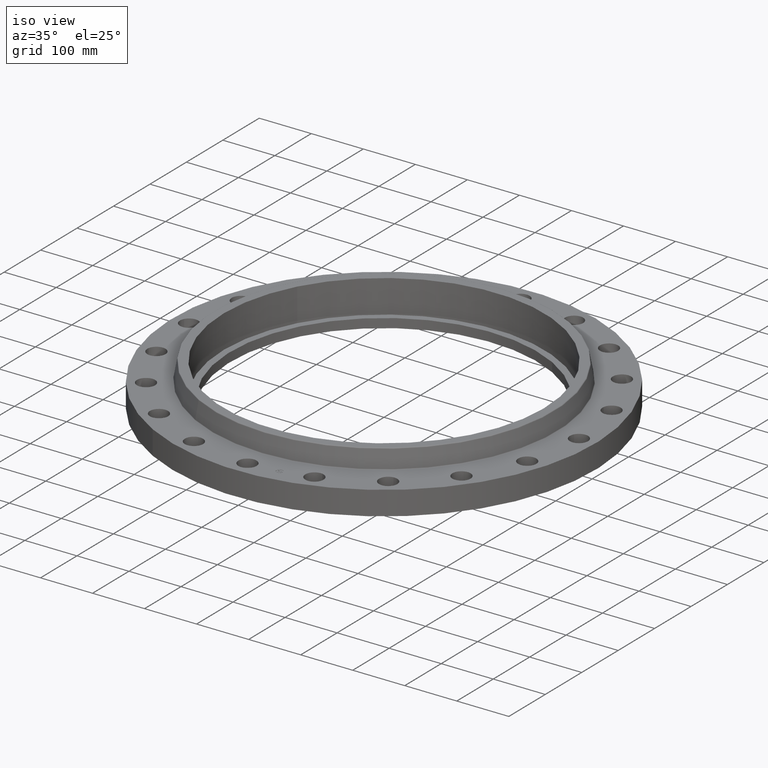
[diagram: clean part render]
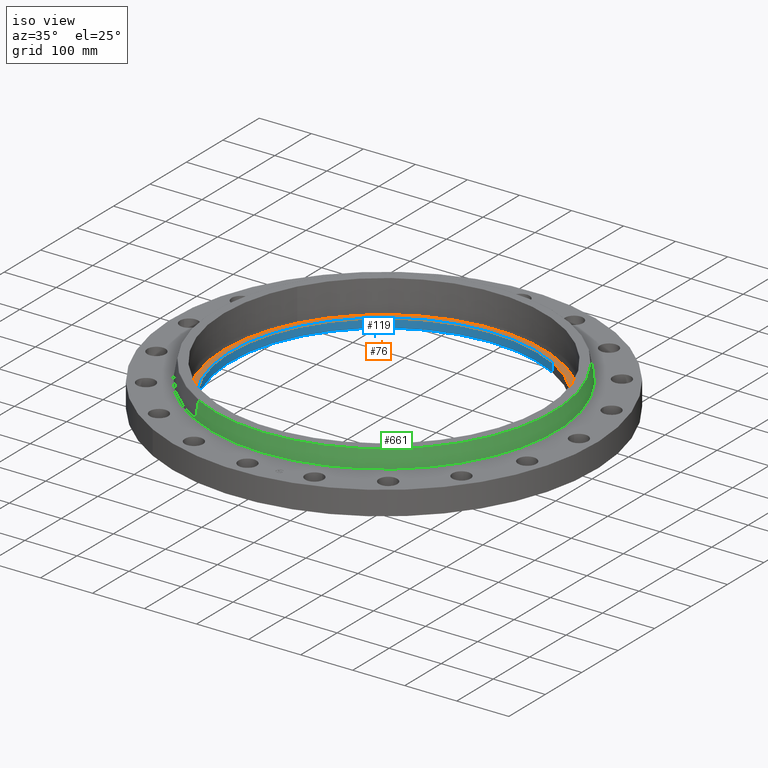
[diagram: same view with three faces highlighted in distinct colors, each labeled with its STEP entity id]
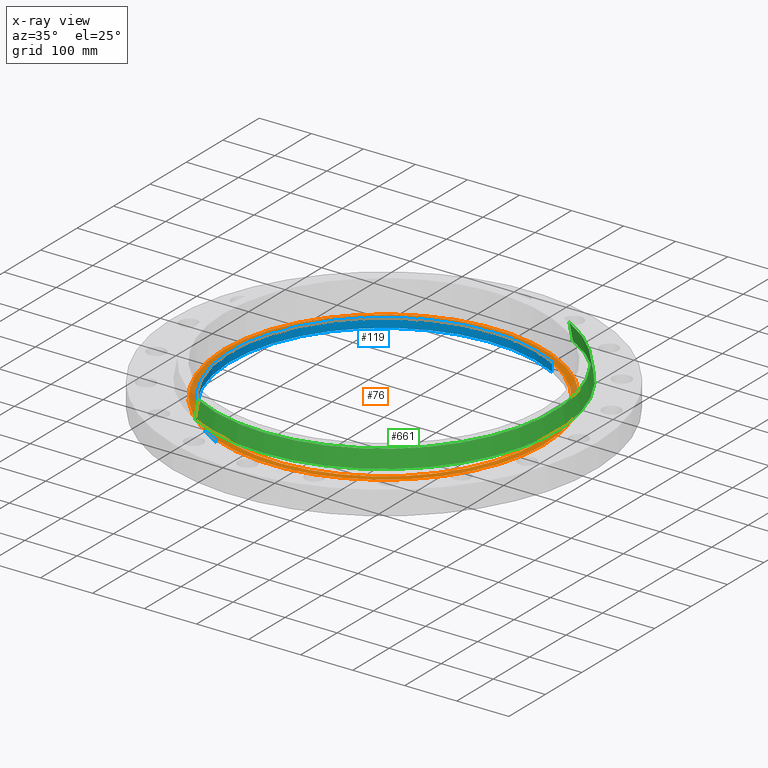
[diagram: x-ray of the same camera — body ghosted, the three highlighted faces saturated]
A machine part, iso view with three faces highlighted in distinct colors.
The next image is the same camera in x-ray (body ghosted, the three faces saturated) — at least one of them is partly hidden behind the body in this view.
Their STEP definitions:

[orange] entity #76 — the highlighted planar face has unit normal (0, 0, -1).
#38=AXIS2_PLACEMENT_3D('Plane Axis2P3D',#35,#36,#37) ;
#42=AXIS2_PLACEMENT_3D('Circle Axis2P3D',#40,#41,$) ;
#51=AXIS2_PLACEMENT_3D('Circle Axis2P3D',#49,#50,$) ;
#60=AXIS2_PLACEMENT_3D('Circle Axis2P3D',#58,#59,$) ;
#69=AXIS2_PLACEMENT_3D('Circle Axis2P3D',#67,#68,$) ;
#35=CARTESIAN_POINT('Axis2P3D Location',(0.,-6.99353086378E-017,0.690000000003)) ;
#40=CARTESIAN_POINT('Axis2P3D Location',(0.,-6.99353086378E-017,0.690000000003)) ;
#44=CARTESIAN_POINT('Vertex',(-10.640688563,5.8130346556,0.690000000003)) ;
#46=CARTESIAN_POINT('Vertex',(10.640688563,-5.8130346556,0.690000000003)) ;
#49=CARTESIAN_POINT('Axis2P3D Location',(0.,-6.99353086378E-017,0.690000000003)) ;
#58=CARTESIAN_POINT('Axis2P3D Location',(0.,-6.99353086378E-017,0.690000000003)) ;
#62=CARTESIAN_POINT('Vertex',(-5.5733218863,-10.201897282,0.690000000003)) ;
#64=CARTESIAN_POINT('Vertex',(5.5733218863,10.201897282,0.690000000003)) ;
#67=CARTESIAN_POINT('Axis2P3D Location',(1.1189649382E-015,-3.49676543189E-016,0.690000000003)) ;
#36=DIRECTION('Axis2P3D Direction',(0.,0.,-0.0393700787402)) ;
#37=DIRECTION('Axis2P3D XDirection',(0.0393700787402,0.,0.)) ;
#41=DIRECTION('Axis2P3D Direction',(0.,0.,-0.0393700787402)) ;
#50=DIRECTION('Axis2P3D Direction',(0.,0.,-0.0393700787402)) ;
#59=DIRECTION('Axis2P3D Direction',(0.,0.,-0.0393700787402)) ;
#68=DIRECTION('Axis2P3D Direction',(0.,0.,-0.0393700787402)) ;
#55=ORIENTED_EDGE('',*,*,#48,.F.) ;
#56=ORIENTED_EDGE('',*,*,#53,.F.) ;
#73=ORIENTED_EDGE('',*,*,#66,.T.) ;
#74=ORIENTED_EDGE('',*,*,#71,.T.) ;
#75=FACE_BOUND('',#72,.T.) ;
#76=ADVANCED_FACE('PartBody',(#57,#75),#39,.F.) ;
#43=CIRCLE('generated circle',#42,12.125) ;
#52=CIRCLE('generated circle',#51,12.125) ;
#61=CIRCLE('generated circle',#60,11.625) ;
#70=CIRCLE('generated circle',#69,11.625) ;
#48=EDGE_CURVE('',#45,#47,#43,.T.) ;
#53=EDGE_CURVE('',#47,#45,#52,.T.) ;
#66=EDGE_CURVE('',#63,#65,#61,.T.) ;
#71=EDGE_CURVE('',#65,#63,#70,.T.) ;
#54=EDGE_LOOP('',(#55,#56)) ;
#72=EDGE_LOOP('',(#73,#74)) ;
#57=FACE_OUTER_BOUND('',#54,.T.) ;
#39=PLANE('',#38) ;
#45=VERTEX_POINT('',#44) ;
#47=VERTEX_POINT('',#46) ;
#63=VERTEX_POINT('',#62) ;
#65=VERTEX_POINT('',#64) ;

[blue] entity #119 — the highlighted cylindrical surface (partial cylindrical patch) has radius 295.275 mm, axis along (0, 0, -1).
#60=AXIS2_PLACEMENT_3D('Circle Axis2P3D',#58,#59,$) ;
#80=AXIS2_PLACEMENT_3D('Cylinder Axis2P3D',#77,#78,#79) ;
#110=AXIS2_PLACEMENT_3D('Circle Axis2P3D',#108,#109,$) ;
#58=CARTESIAN_POINT('Axis2P3D Location',(0.,-6.99353086378E-017,0.690000000003)) ;
#62=CARTESIAN_POINT('Vertex',(-5.5733218863,-10.201897282,0.690000000003)) ;
#64=CARTESIAN_POINT('Vertex',(5.5733218863,10.201897282,0.690000000003)) ;
#77=CARTESIAN_POINT('Axis2P3D Location',(0.,0.,1.59500000001)) ;
#82=CARTESIAN_POINT('Line Origine',(5.5733218863,10.201897282,0.345000000001)) ;
#86=CARTESIAN_POINT('Vertex',(5.5733218863,10.201897282,-8.00059930816E-014)) ;
#93=CARTESIAN_POINT('Vertex',(-5.5733218863,-10.201897282,-8.00059930816E-014)) ;
#96=CARTESIAN_POINT('Line Origine',(-5.5733218863,-10.201897282,0.345000000001)) ;
#108=CARTESIAN_POINT('Axis2P3D Location',(0.,0.,-8.00059930816E-014)) ;
#59=DIRECTION('Axis2P3D Direction',(0.,0.,-0.0393700787402)) ;
#78=DIRECTION('Axis2P3D Direction',(0.,0.,-0.0393700787402)) ;
#79=DIRECTION('Axis2P3D XDirection',(-0.0188750212049,-0.0345504945626,0.)) ;
#83=DIRECTION('Vector Direction',(0.,0.,-0.0393700787402)) ;
#97=DIRECTION('Vector Direction',(0.,0.,-0.0393700787402)) ;
#109=DIRECTION('Axis2P3D Direction',(0.,0.,-0.0393700787402)) ;
#84=VECTOR('Line Direction',#83,0.0393700787402) ;
#98=VECTOR('Line Direction',#97,0.0393700787402) ;
#114=ORIENTED_EDGE('',*,*,#100,.T.) ;
#115=ORIENTED_EDGE('',*,*,#112,.T.) ;
#116=ORIENTED_EDGE('',*,*,#88,.F.) ;
#117=ORIENTED_EDGE('',*,*,#66,.F.) ;
#119=ADVANCED_FACE('PartBody',(#118),#81,.F.) ;
#61=CIRCLE('generated circle',#60,11.625) ;
#111=CIRCLE('generated circle',#110,11.625) ;
#81=CYLINDRICAL_SURFACE('generated cylinder',#80,11.625) ;
#66=EDGE_CURVE('',#63,#65,#61,.T.) ;
#88=EDGE_CURVE('',#65,#87,#85,.T.) ;
#100=EDGE_CURVE('',#63,#94,#99,.T.) ;
#112=EDGE_CURVE('',#94,#87,#111,.T.) ;
#113=EDGE_LOOP('',(#114,#115,#116,#117)) ;
#118=FACE_OUTER_BOUND('',#113,.T.) ;
#85=LINE('Line',#82,#84) ;
#99=LINE('Line',#96,#98) ;
#63=VERTEX_POINT('',#62) ;
#65=VERTEX_POINT('',#64) ;
#87=VERTEX_POINT('',#86) ;
#94=VERTEX_POINT('',#93) ;

[green] entity #661 — the highlighted conical surface has half-angle 10 deg.
#597=AXIS2_PLACEMENT_3D('Circle Axis2P3D',#595,#596,$) ;
#634=AXIS2_PLACEMENT_3D('Cone Axis2P3D',#631,#632,#633) ;
#645=AXIS2_PLACEMENT_3D('Circle Axis2P3D',#643,#644,$) ;
#592=CARTESIAN_POINT('Vertex',(6.25710616251,11.4535560039,1.85958110935)) ;
#595=CARTESIAN_POINT('Axis2P3D Location',(0.,0.,1.85958110935)) ;
#599=CARTESIAN_POINT('Vertex',(-6.25710616251,-11.4535560039,1.85958110935)) ;
#631=CARTESIAN_POINT('Axis2P3D Location',(0.,0.,3.14041889067)) ;
#636=CARTESIAN_POINT('Line Origine',(6.20296793039,11.3544566347,2.50000000001)) ;
#640=CARTESIAN_POINT('Vertex',(6.14882969826,11.2553572656,3.14041889067)) ;
#643=CARTESIAN_POINT('Axis2P3D Location',(0.,0.,3.14041889067)) ;
#647=CARTESIAN_POINT('Vertex',(-6.14882969826,-11.2553572656,3.14041889067)) ;
#650=CARTESIAN_POINT('Line Origine',(-6.20296793039,-11.3544566347,2.50000000001)) ;
#596=DIRECTION('Axis2P3D Direction',(0.,0.,-0.0393700787402)) ;
#632=DIRECTION('Axis2P3D Direction',(0.,0.,-0.0393700787402)) ;
#633=DIRECTION('Axis2P3D XDirection',(-0.0188750212049,-0.0345504945626,0.)) ;
#637=DIRECTION('Vector Direction',(0.00327761303565,0.00599963041829,-0.03877195878)) ;
#644=DIRECTION('Axis2P3D Direction',(0.,0.,-0.0393700787402)) ;
#651=DIRECTION('Vector Direction',(-0.00327761303565,-0.00599963041829,-0.03877195878)) ;
#638=VECTOR('Line Direction',#637,0.0393700787402) ;
#652=VECTOR('Line Direction',#651,0.0393700787402) ;
#656=ORIENTED_EDGE('',*,*,#601,.F.) ;
#657=ORIENTED_EDGE('',*,*,#642,.T.) ;
#658=ORIENTED_EDGE('',*,*,#649,.T.) ;
#659=ORIENTED_EDGE('',*,*,#654,.F.) ;
#661=ADVANCED_FACE('PartBody',(#660),#635,.T.) ;
#598=CIRCLE('generated circle',#597,13.0512575127) ;
#646=CIRCLE('generated circle',#645,12.825411254) ;
#635=CONICAL_SURFACE('Cone',#634,12.825411254,0.174532925199) ;
#601=EDGE_CURVE('',#593,#600,#598,.T.) ;
#642=EDGE_CURVE('',#593,#641,#639,.F.) ;
#649=EDGE_CURVE('',#641,#648,#646,.T.) ;
#654=EDGE_CURVE('',#600,#648,#653,.F.) ;
#655=EDGE_LOOP('',(#656,#657,#658,#659)) ;
#660=FACE_OUTER_BOUND('',#655,.T.) ;
#639=LINE('Line',#636,#638) ;
#653=LINE('Line',#650,#652) ;
#593=VERTEX_POINT('',#592) ;
#600=VERTEX_POINT('',#599) ;
#641=VERTEX_POINT('',#640) ;
#648=VERTEX_POINT('',#647) ;